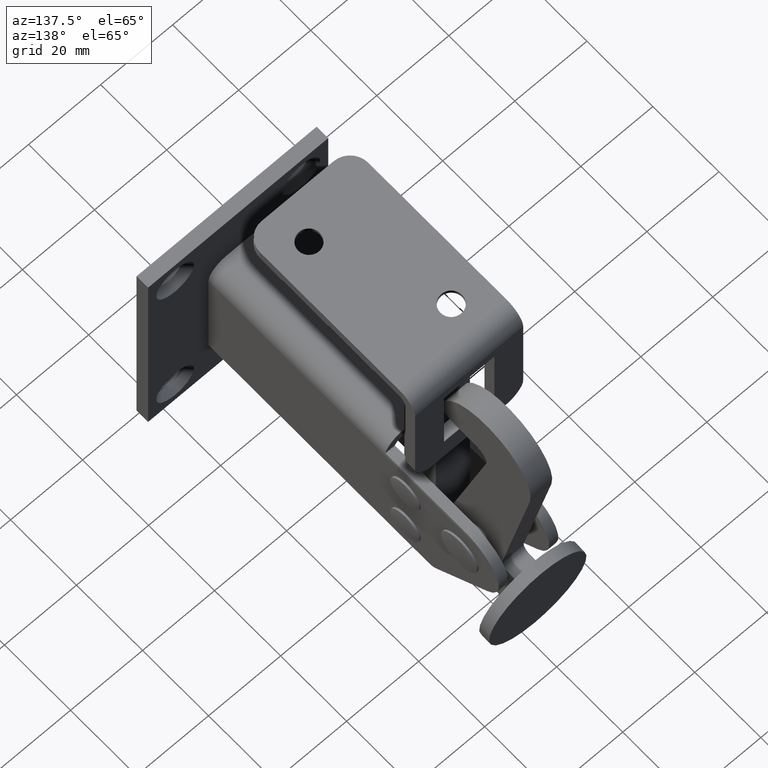
[diagram: clean part render]
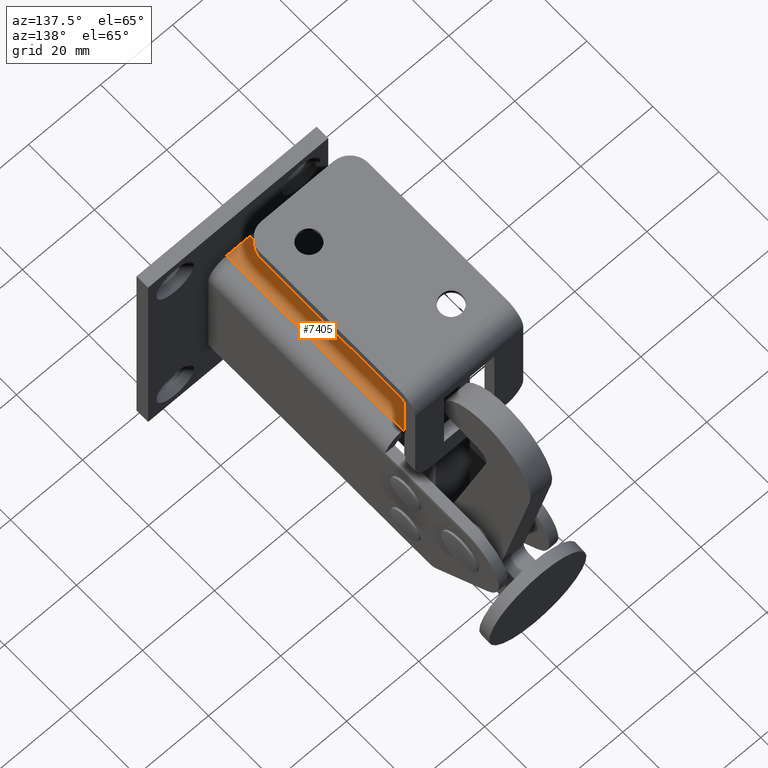
[diagram: same view with one face highlighted and labeled with its STEP entity id]
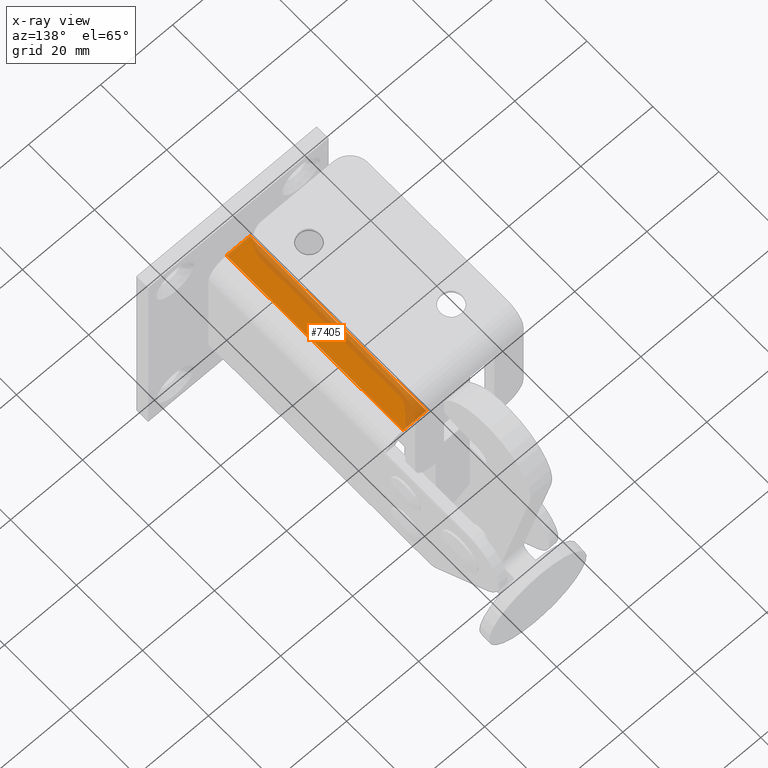
[diagram: x-ray of the same camera — body ghosted, the highlighted face saturated]
A machine part, auxiliary view. The second image highlights one B-rep face of the part: STEP entity #7405.
The next image is the same camera in x-ray: the body ghosted, the highlighted face saturated — about 30% of this face is hidden behind the body in this view.
In plain terms, the highlighted planar face has unit normal (0, 0, -1).
Its self-contained STEP definition (entity closure, byte-faithful):
#20 = ORIENTED_EDGE ( 'NONE', *, *, #4453, .T. ) ;
#577 = CARTESIAN_POINT ( 'NONE',  ( 3.250000000000000400, 93.50000000000000000, 16.49999999999999300 ) ) ;
#1019 = EDGE_CURVE ( 'NONE', #5613, #9091, #13169, .T. ) ;
#1251 = CARTESIAN_POINT ( 'NONE',  ( 3.250000000000000400, 93.50000000000000000, 16.49999999999999300 ) ) ;
#1668 = AXIS2_PLACEMENT_3D ( 'NONE', #1251, #6418, #11344 ) ;
#1846 = EDGE_CURVE ( 'NONE', #9091, #10664, #6248, .T. ) ;
#1848 = EDGE_LOOP ( 'NONE', ( #11755, #11516, #20, #5213 ) ) ;
#2272 = CARTESIAN_POINT ( 'NONE',  ( -24.99999999999999600, 57.00000000000000700, 16.49999999999999300 ) ) ;
#3322 = LINE ( 'NONE', #10672, #11093 ) ;
#3560 = LINE ( 'NONE', #11500, #10711 ) ;
#4174 = CARTESIAN_POINT ( 'NONE',  ( -3.249999999999996000, 3.500000000000000000, 16.49999999999999300 ) ) ;
#4453 = EDGE_CURVE ( 'NONE', #5613, #8420, #3560, .T. ) ;
#5213 = ORIENTED_EDGE ( 'NONE', *, *, #5625, .T. ) ;
#5613 = VERTEX_POINT ( 'NONE', #9648 ) ;
#5625 = EDGE_CURVE ( 'NONE', #8420, #10664, #3322, .T. ) ;
#6212 = CARTESIAN_POINT ( 'NONE',  ( 3.249999999999992500, 57.00000000000000700, 16.49999999999999300 ) ) ;
#6248 = LINE ( 'NONE', #577, #10407 ) ;
#6418 = DIRECTION ( 'NONE',  ( 0.0000000000000000000, 0.0000000000000000000, -1.000000000000000000 ) ) ;
#7405 = ADVANCED_FACE ( 'NONE', ( #8566 ), #12549, .F. ) ;
#8385 = DIRECTION ( 'NONE',  ( -0.0000000000000000000, -1.000000000000000000, -0.0000000000000000000 ) ) ;
#8420 = VERTEX_POINT ( 'NONE', #4174 ) ;
#8566 = FACE_OUTER_BOUND ( 'NONE', #1848, .T. ) ;
#8819 = DIRECTION ( 'NONE',  ( -0.0000000000000000000, -1.000000000000000000, -0.0000000000000000000 ) ) ;
#9091 = VERTEX_POINT ( 'NONE', #6212 ) ;
#9384 = DIRECTION ( 'NONE',  ( 1.000000000000000000, -0.0000000000000000000, -0.0000000000000000000 ) ) ;
#9648 = CARTESIAN_POINT ( 'NONE',  ( -3.249999999999996000, 57.00000000000002800, 16.49999999999999300 ) ) ;
#10407 = VECTOR ( 'NONE', #8819, 1000.000000000000000 ) ;
#10579 = DIRECTION ( 'NONE',  ( 1.000000000000000000, -0.0000000000000000000, -0.0000000000000000000 ) ) ;
#10664 = VERTEX_POINT ( 'NONE', #12550 ) ;
#10672 = CARTESIAN_POINT ( 'NONE',  ( 3.250000000000000400, 3.500000000000000000, 16.49999999999999300 ) ) ;
#10711 = VECTOR ( 'NONE', #8385, 1000.000000000000000 ) ;
#10923 = VECTOR ( 'NONE', #9384, 1000.000000000000000 ) ;
#11093 = VECTOR ( 'NONE', #10579, 1000.000000000000000 ) ;
#11344 = DIRECTION ( 'NONE',  ( -1.000000000000000000, 0.0000000000000000000, -0.0000000000000000000 ) ) ;
#11500 = CARTESIAN_POINT ( 'NONE',  ( -3.249999999999996000, 93.50000000000000000, 16.49999999999999300 ) ) ;
#11516 = ORIENTED_EDGE ( 'NONE', *, *, #1019, .F. ) ;
#11755 = ORIENTED_EDGE ( 'NONE', *, *, #1846, .F. ) ;
#12549 = PLANE ( 'NONE',  #1668 ) ;
#12550 = CARTESIAN_POINT ( 'NONE',  ( 3.250000000000000400, 3.500000000000000000, 16.49999999999999300 ) ) ;
#13169 = LINE ( 'NONE', #2272, #10923 ) ;